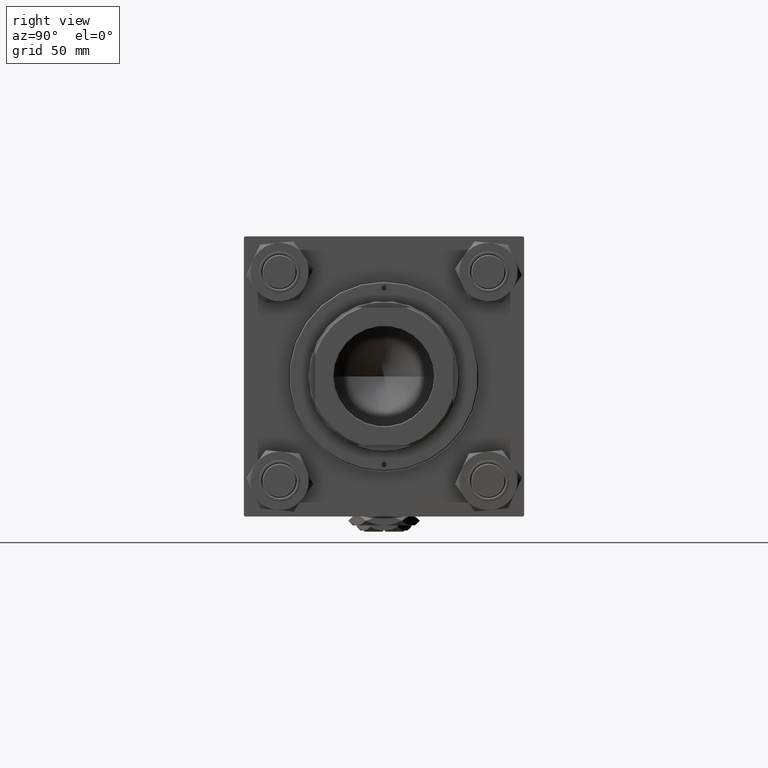
[diagram: clean part render]
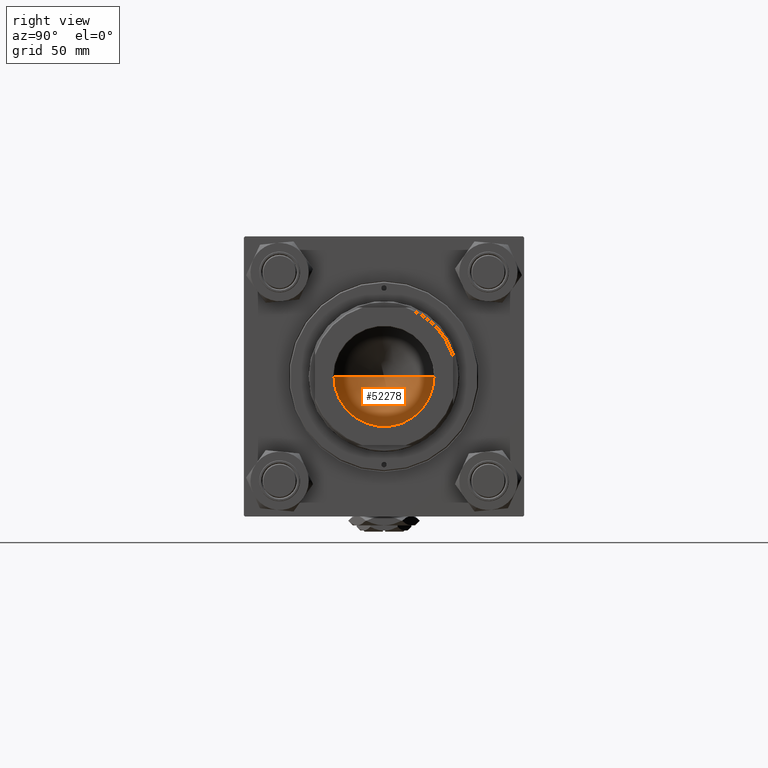
[diagram: same view with one face highlighted and labeled with its STEP entity id]
A machine part, right view. The second image highlights one B-rep face of the part: STEP entity #52278.
In plain terms, the highlighted conical surface has half-angle 59 deg.
Its self-contained STEP definition (entity closure, byte-faithful):
#228 = VERTEX_POINT ( 'NONE', #29026 ) ;
#817 = DIRECTION ( 'NONE',  ( 1.000000000000000000, 0.000000000000000000, 0.000000000000000000 ) ) ;
#4218 = CARTESIAN_POINT ( 'NONE',  ( 0.000000000000000000, 0.000000000000000000, 109.9999999999999858 ) ) ;
#4328 = CARTESIAN_POINT ( 'NONE',  ( 23.24999999999998579, 0.000000000000000000, 109.9999999999999858 ) ) ;
#10492 = CARTESIAN_POINT ( 'NONE',  ( -1.584115414415908206E-14, 0.000000000000000000, 96.02999060760919292 ) ) ;
#13068 = AXIS2_PLACEMENT_3D ( 'NONE', #33717, #32927, #817 ) ;
#13239 = VERTEX_POINT ( 'NONE', #34613 ) ;
#16540 = DIRECTION ( 'NONE',  ( 0.8571673007021117785, 0.000000000000000000, 0.5150380749100550437 ) ) ;
#19190 = EDGE_CURVE ( 'NONE', #228, #13239, #20700, .T. ) ;
#20700 = CIRCLE ( 'NONE', #13068, 23.24999999999998579 ) ;
#24109 = EDGE_CURVE ( 'NONE', #37430, #228, #52104, .T. ) ;
#24884 = DIRECTION ( 'NONE',  ( -0.000000000000000000, -0.000000000000000000, 1.000000000000000000 ) ) ;
#26979 = AXIS2_PLACEMENT_3D ( 'NONE', #4218, #24884, #33384 ) ;
#28873 = FACE_OUTER_BOUND ( 'NONE', #34801, .T. ) ;
#29026 = CARTESIAN_POINT ( 'NONE',  ( 23.24999999999998579, 0.000000000000000000, 109.9999999999999858 ) ) ;
#30838 = ORIENTED_EDGE ( 'NONE', *, *, #24109, .T. ) ;
#32454 = LINE ( 'NONE', #48651, #41264 ) ;
#32927 = DIRECTION ( 'NONE',  ( -0.000000000000000000, -0.000000000000000000, 1.000000000000000000 ) ) ;
#33384 = DIRECTION ( 'NONE',  ( 1.000000000000000000, 0.000000000000000000, 0.000000000000000000 ) ) ;
#33717 = CARTESIAN_POINT ( 'NONE',  ( 0.000000000000000000, 0.000000000000000000, 109.9999999999999858 ) ) ;
#34613 = CARTESIAN_POINT ( 'NONE',  ( -23.24999999999998579, 2.847303808017594561E-15, 109.9999999999999858 ) ) ;
#34801 = EDGE_LOOP ( 'NONE', ( #36478, #30838, #38906 ) ) ;
#36478 = ORIENTED_EDGE ( 'NONE', *, *, #43525, .F. ) ;
#37430 = VERTEX_POINT ( 'NONE', #10492 ) ;
#38906 = ORIENTED_EDGE ( 'NONE', *, *, #19190, .T. ) ;
#41264 = VECTOR ( 'NONE', #42897, 1000.000000000000000 ) ;
#42743 = VECTOR ( 'NONE', #16540, 1000.000000000000000 ) ;
#42897 = DIRECTION ( 'NONE',  ( -0.8571673007021117785, 1.049727191138617956E-16, 0.5150380749100550437 ) ) ;
#43525 = EDGE_CURVE ( 'NONE', #37430, #13239, #32454, .T. ) ;
#48651 = CARTESIAN_POINT ( 'NONE',  ( -23.24999999999998579, 2.847303808017594561E-15, 109.9999999999999858 ) ) ;
#49885 = CONICAL_SURFACE ( 'NONE', #26979, 23.24999999999998579, 1.029744258676653423 ) ;
#52104 = LINE ( 'NONE', #4328, #42743 ) ;
#52278 = ADVANCED_FACE ( 'NONE', ( #28873 ), #49885, .F. ) ;